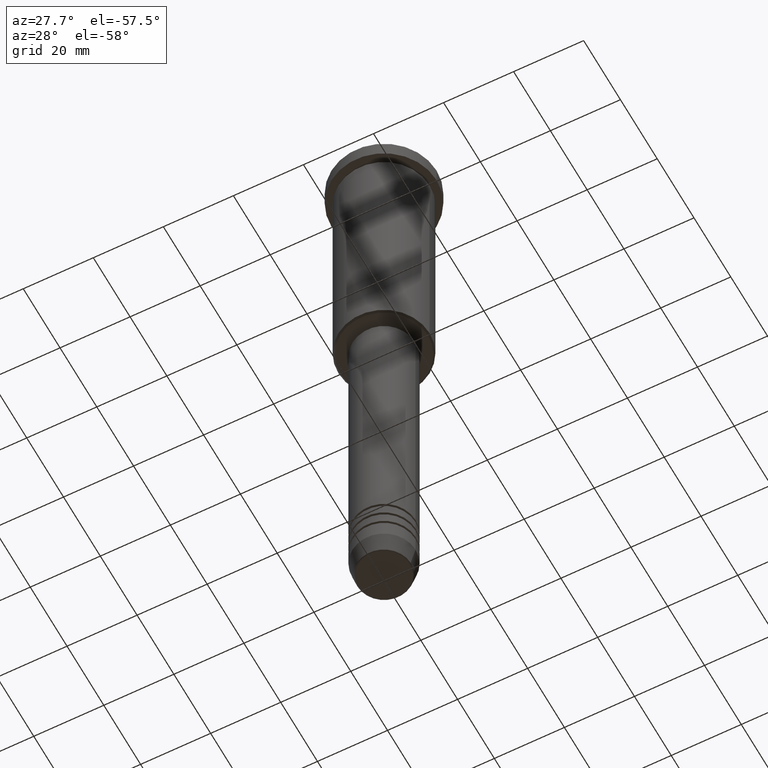
[diagram: clean part render]
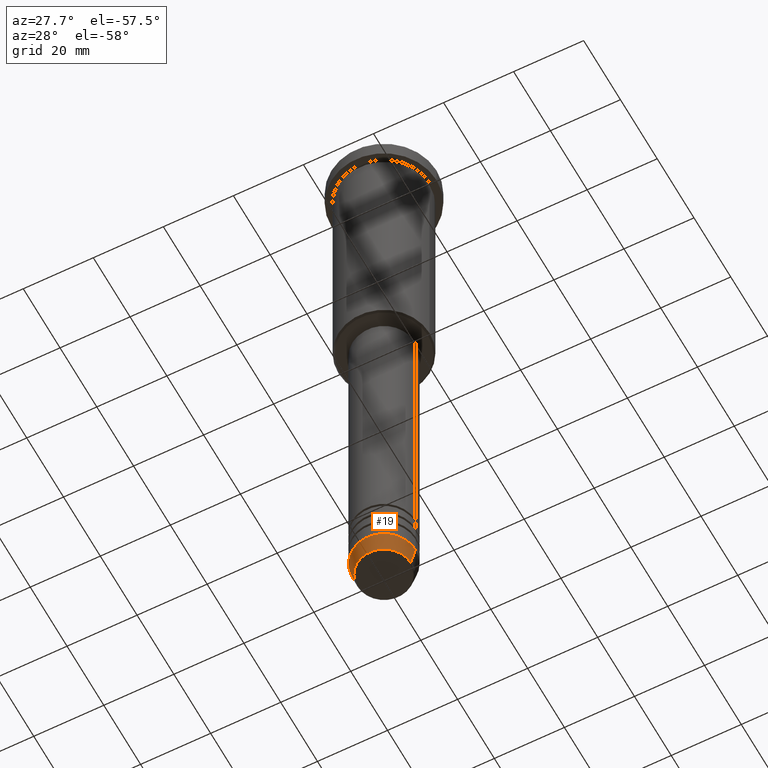
[diagram: same view with one face highlighted and labeled with its STEP entity id]
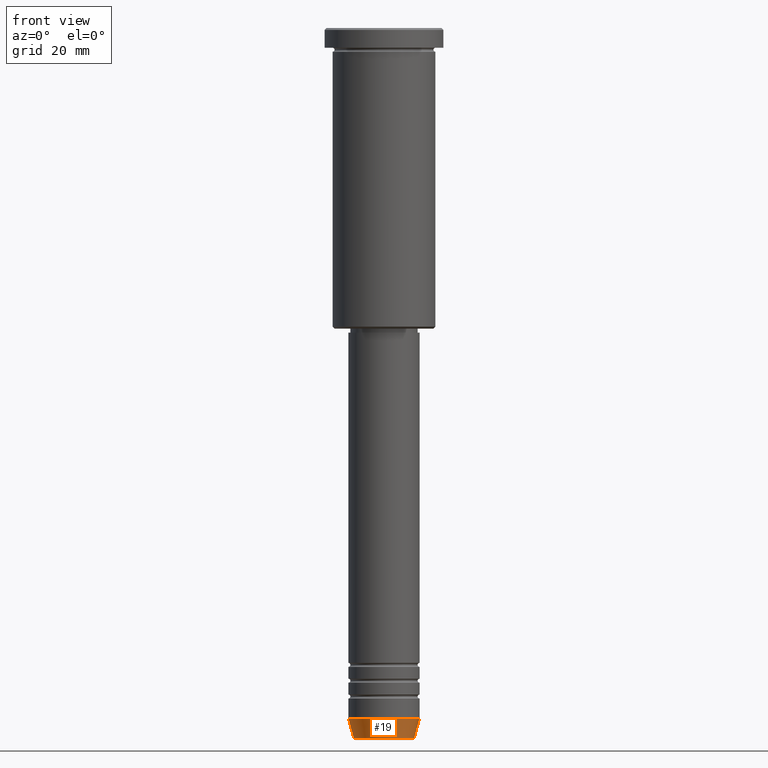
[diagram: same view with one face highlighted and labeled with its STEP entity id]
A machine part, auxiliary view. The second image highlights one B-rep face of the part: STEP entity #19.
A second angle (front view) of the same face is appended — the face is thin or edge-on in the first view.
In plain terms, the highlighted conical surface has half-angle 15 deg.
Its self-contained STEP definition (entity closure, byte-faithful):
#19 = ADVANCED_FACE ( 'NONE', ( #253 ), #581, .T. ) ;
#29 = ORIENTED_EDGE ( 'NONE', *, *, #318, .F. ) ;
#49 = CARTESIAN_POINT ( 'NONE',  ( 9.000000000000001776, 0.000000000000000000, -174.5000000000000284 ) ) ;
#57 = VERTEX_POINT ( 'NONE', #964 ) ;
#107 = ORIENTED_EDGE ( 'NONE', *, *, #535, .T. ) ;
#118 = CARTESIAN_POINT ( 'NONE',  ( 0.000000000000000000, 0.000000000000000000, -174.5000000000000284 ) ) ;
#159 = DIRECTION ( 'NONE',  ( -0.000000000000000000, -0.000000000000000000, 1.000000000000000000 ) ) ;
#198 = DIRECTION ( 'NONE',  ( -0.000000000000000000, -0.000000000000000000, 1.000000000000000000 ) ) ;
#216 = DIRECTION ( 'NONE',  ( 1.000000000000000000, 0.000000000000000000, 0.000000000000000000 ) ) ;
#242 = AXIS2_PLACEMENT_3D ( 'NONE', #1122, #198, #216 ) ;
#252 = DIRECTION ( 'NONE',  ( 1.000000000000000000, 0.000000000000000000, 0.000000000000000000 ) ) ;
#253 = FACE_OUTER_BOUND ( 'NONE', #627, .T. ) ;
#254 = ORIENTED_EDGE ( 'NONE', *, *, #425, .F. ) ;
#269 = CARTESIAN_POINT ( 'NONE',  ( 9.000000000000001776, 0.000000000000000000, -174.5000000000000284 ) ) ;
#318 = EDGE_CURVE ( 'NONE', #925, #680, #459, .T. ) ;
#397 = AXIS2_PLACEMENT_3D ( 'NONE', #118, #404, #252 ) ;
#404 = DIRECTION ( 'NONE',  ( -0.000000000000000000, -0.000000000000000000, 1.000000000000000000 ) ) ;
#423 = DIRECTION ( 'NONE',  ( 1.000000000000000000, 0.000000000000000000, 0.000000000000000000 ) ) ;
#425 = EDGE_CURVE ( 'NONE', #57, #925, #1032, .T. ) ;
#445 = EDGE_CURVE ( 'NONE', #57, #1087, #1142, .T. ) ;
#459 = CIRCLE ( 'NONE', #397, 9.000000000000001776 ) ;
#470 = CARTESIAN_POINT ( 'NONE',  ( -9.000000000000001776, 1.102182119232617911E-15, -174.5000000000000284 ) ) ;
#535 = EDGE_CURVE ( 'NONE', #1087, #680, #604, .T. ) ;
#547 = CARTESIAN_POINT ( 'NONE',  ( 7.625578860783882362, 0.000000000000000000, -179.6294095225512422 ) ) ;
#581 = CONICAL_SURFACE ( 'NONE', #1085, 9.000000000000001776, 0.2617993877991499629 ) ;
#597 = ORIENTED_EDGE ( 'NONE', *, *, #445, .T. ) ;
#604 = LINE ( 'NONE', #49, #695 ) ;
#627 = EDGE_LOOP ( 'NONE', ( #254, #597, #107, #29 ) ) ;
#680 = VERTEX_POINT ( 'NONE', #269 ) ;
#690 = DIRECTION ( 'NONE',  ( 0.2588190451025212391, 0.000000000000000000, 0.9659258262890680902 ) ) ;
#695 = VECTOR ( 'NONE', #690, 1000.000000000000114 ) ;
#887 = VECTOR ( 'NONE', #1050, 1000.000000000000114 ) ;
#925 = VERTEX_POINT ( 'NONE', #470 ) ;
#964 = CARTESIAN_POINT ( 'NONE',  ( -7.625578860783882362, 1.018023096791544096E-15, -179.6294095225512422 ) ) ;
#990 = CARTESIAN_POINT ( 'NONE',  ( 0.000000000000000000, 0.000000000000000000, -174.5000000000000284 ) ) ;
#1032 = LINE ( 'NONE', #1137, #887 ) ;
#1050 = DIRECTION ( 'NONE',  ( -0.2588190451025212391, 3.169619151431771721E-17, 0.9659258262890680902 ) ) ;
#1085 = AXIS2_PLACEMENT_3D ( 'NONE', #990, #159, #423 ) ;
#1087 = VERTEX_POINT ( 'NONE', #547 ) ;
#1122 = CARTESIAN_POINT ( 'NONE',  ( 0.000000000000000000, 0.000000000000000000, -179.6294095225512422 ) ) ;
#1137 = CARTESIAN_POINT ( 'NONE',  ( -9.000000000000001776, 1.102182119232617911E-15, -174.5000000000000284 ) ) ;
#1142 = CIRCLE ( 'NONE', #242, 7.625578860783882362 ) ;